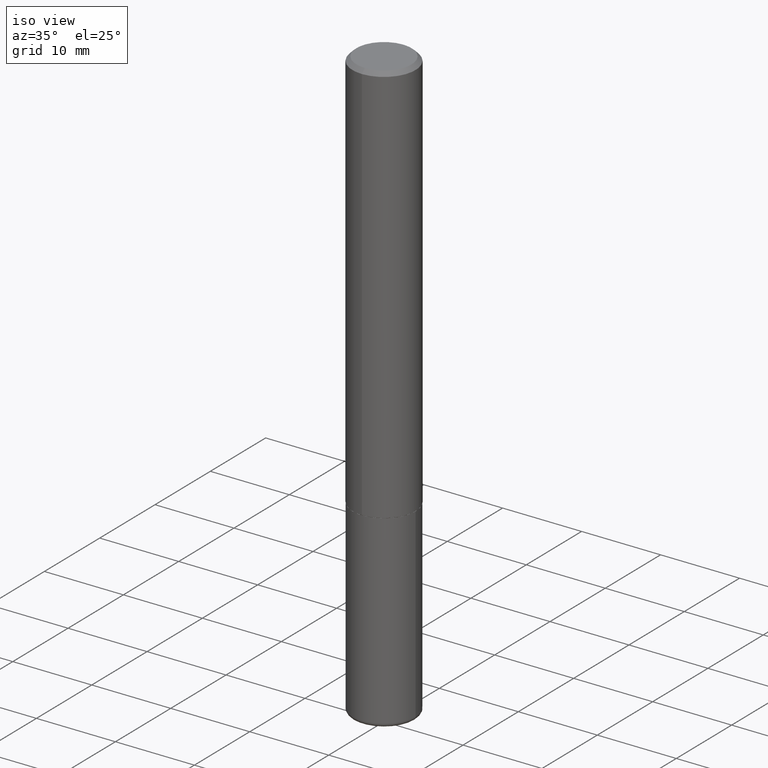
[diagram: clean part render]
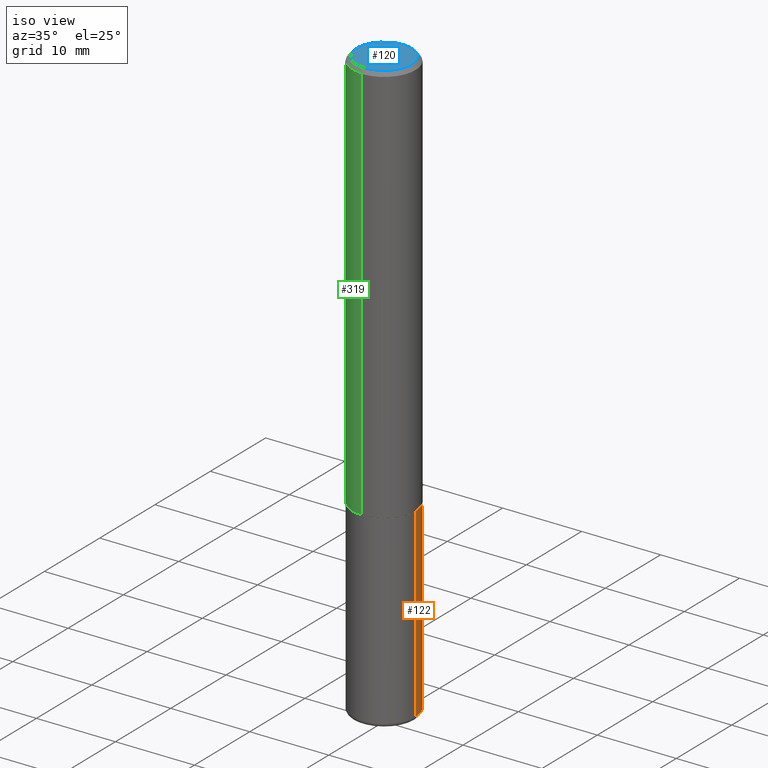
[diagram: same view with three faces highlighted in distinct colors, each labeled with its STEP entity id]
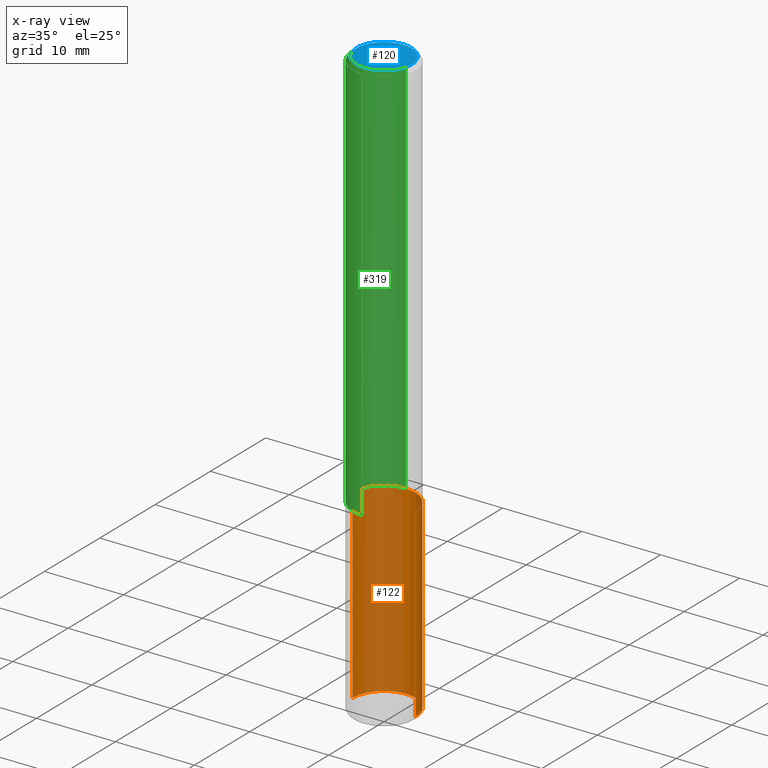
[diagram: x-ray of the same camera — body ghosted, the three highlighted faces saturated]
A machine part, iso view with three faces highlighted in distinct colors.
The next image is the same camera in x-ray (body ghosted, the three faces saturated) — at least one of them is partly hidden behind the body in this view.
Their STEP definitions:

[orange] entity #122 — the highlighted cylindrical surface (partial cylindrical patch) has radius 4.0005 mm, axis along (-0, 0, 1).
#6 = EDGE_CURVE ( 'NONE', #332, #349, #303, .T. ) ;
#11 = CARTESIAN_POINT ( 'NONE',  ( 0.1575000000000000011, -8.110362001998737613E-15, -2.007899999999999796 ) ) ;
#13 = CIRCLE ( 'NONE', #218, 0.1575000000000000011 ) ;
#14 = CARTESIAN_POINT ( 'NONE',  ( -0.1575000000000000011, -7.506599838789833107E-15, -2.007899999999999796 ) ) ;
#16 = DIRECTION ( 'NONE',  ( -2.445468806185136597E-29, 3.491481338843145583E-15, 1.000000000000000000 ) ) ;
#30 = CARTESIAN_POINT ( 'NONE',  ( 4.910256815939135309E-29, -7.010545380263150922E-15, -2.007899999999999796 ) ) ;
#38 = CYLINDRICAL_SURFACE ( 'NONE', #406, 0.1575000000000000011 ) ;
#62 = VERTEX_POINT ( 'NONE', #212 ) ;
#70 = DIRECTION ( 'NONE',  ( -2.445468806185136597E-29, 3.491481338843145583E-15, 1.000000000000000000 ) ) ;
#83 = CARTESIAN_POINT ( 'NONE',  ( 0.1575000000000000011, -1.099816621735586889E-15, 7.679978421878598033E-30 ) ) ;
#95 = DIRECTION ( 'NONE',  ( 1.000000000000000000, -6.982962677686265922E-15, 4.876176775795935232E-29 ) ) ;
#107 = EDGE_CURVE ( 'NONE', #349, #213, #416, .T. ) ;
#122 = ADVANCED_FACE ( 'NONE', ( #180 ), #38, .T. ) ;
#131 = VECTOR ( 'NONE', #331, 39.37007874015748143 ) ;
#147 = CARTESIAN_POINT ( 'NONE',  ( -0.1575000000000000011, 1.119104808822157801E-15, -7.747322767151475583E-30 ) ) ;
#157 = ORIENTED_EDGE ( 'NONE', *, *, #107, .F. ) ;
#165 = EDGE_CURVE ( 'NONE', #332, #62, #13, .T. ) ;
#175 = AXIS2_PLACEMENT_3D ( 'NONE', #30, #70, #177 ) ;
#177 = DIRECTION ( 'NONE',  ( 1.000000000000000000, -6.982962677686268288E-15, 0.000000000000000000 ) ) ;
#180 = FACE_OUTER_BOUND ( 'NONE', #351, .T. ) ;
#184 = CARTESIAN_POINT ( 'NONE',  ( 0.1574999999999998346, -1.134068053669641403E-14, -2.933100000000000041 ) ) ;
#212 = CARTESIAN_POINT ( 'NONE',  ( -0.1574999999999998346, -9.121759106138672895E-15, -2.933100000000000041 ) ) ;
#213 = VERTEX_POINT ( 'NONE', #14 ) ;
#218 = AXIS2_PLACEMENT_3D ( 'NONE', #229, #16, #232 ) ;
#229 = CARTESIAN_POINT ( 'NONE',  ( 7.172804555421624566E-29, -1.024086391496083050E-14, -2.933100000000000041 ) ) ;
#232 = DIRECTION ( 'NONE',  ( 1.000000000000000000, -6.982962677686261977E-15, 0.000000000000000000 ) ) ;
#248 = EDGE_CURVE ( 'NONE', #62, #213, #322, .T. ) ;
#268 = ORIENTED_EDGE ( 'NONE', *, *, #6, .F. ) ;
#287 = DIRECTION ( 'NONE',  ( -2.445468806185136597E-29, 3.491481338843145583E-15, 1.000000000000000000 ) ) ;
#303 = LINE ( 'NONE', #83, #334 ) ;
#322 = LINE ( 'NONE', #147, #131 ) ;
#324 = CARTESIAN_POINT ( 'NONE',  ( 0.000000000000000000, 0.000000000000000000, 0.000000000000000000 ) ) ;
#331 = DIRECTION ( 'NONE',  ( -2.445468806185136877E-29, 3.491481338843145188E-15, 1.000000000000000000 ) ) ;
#332 = VERTEX_POINT ( 'NONE', #184 ) ;
#334 = VECTOR ( 'NONE', #415, 39.37007874015748143 ) ;
#349 = VERTEX_POINT ( 'NONE', #11 ) ;
#351 = EDGE_LOOP ( 'NONE', ( #361, #401, #157, #268 ) ) ;
#361 = ORIENTED_EDGE ( 'NONE', *, *, #165, .T. ) ;
#401 = ORIENTED_EDGE ( 'NONE', *, *, #248, .T. ) ;
#406 = AXIS2_PLACEMENT_3D ( 'NONE', #324, #287, #95 ) ;
#415 = DIRECTION ( 'NONE',  ( -2.445468806185136877E-29, 3.491481338843145188E-15, 1.000000000000000000 ) ) ;
#416 = CIRCLE ( 'NONE', #175, 0.1575000000000000011 ) ;

[blue] entity #120 — the highlighted planar face has unit normal (0, -0, -1).
#1 = VERTEX_POINT ( 'NONE', #174 ) ;
#5 = FACE_OUTER_BOUND ( 'NONE', #364, .T. ) ;
#32 = EDGE_CURVE ( 'NONE', #1, #369, #137, .T. ) ;
#37 = DIRECTION ( 'NONE',  ( -6.982962677686265922E-15, -1.000000000000000000, 3.492539597212410327E-15 ) ) ;
#40 = EDGE_CURVE ( 'NONE', #369, #1, #260, .T. ) ;
#42 = ORIENTED_EDGE ( 'NONE', *, *, #40, .T. ) ;
#120 = ADVANCED_FACE ( 'NONE', ( #5 ), #249, .F. ) ;
#135 = CARTESIAN_POINT ( 'NONE',  ( 9.601573681818597005E-16, 0.1374999999999997335, -3.414247834255550788E-16 ) ) ;
#137 = CIRCLE ( 'NONE', #255, 0.1374999999999997335 ) ;
#174 = CARTESIAN_POINT ( 'NONE',  ( -1.011923454671299856E-15, -0.1374999999999997335, 7.578230169990059811E-16 ) ) ;
#179 = ORIENTED_EDGE ( 'NONE', *, *, #32, .T. ) ;
#207 = CARTESIAN_POINT ( 'NONE',  ( -6.786541213832790321E-45, 9.695248793097192351E-31, 2.775988223823005522E-16 ) ) ;
#237 = CARTESIAN_POINT ( 'NONE',  ( -6.786541213832790321E-45, 9.695248793097192351E-31, 2.775988223823005522E-16 ) ) ;
#249 = PLANE ( 'NONE',  #363 ) ;
#255 = AXIS2_PLACEMENT_3D ( 'NONE', #207, #379, #310 ) ;
#260 = CIRCLE ( 'NONE', #311, 0.1374999999999997335 ) ;
#310 = DIRECTION ( 'NONE',  ( -6.982962677686265922E-15, -1.000000000000000000, 3.492539597212410327E-15 ) ) ;
#311 = AXIS2_PLACEMENT_3D ( 'NONE', #237, #314, #37 ) ;
#314 = DIRECTION ( 'NONE',  ( -2.444729828315544280E-29, 3.492539597212409932E-15, 1.000000000000000000 ) ) ;
#315 = DIRECTION ( 'NONE',  ( 2.444729828315543719E-29, -3.492539597212410327E-15, -1.000000000000000000 ) ) ;
#321 = DIRECTION ( 'NONE',  ( 6.982962677686265922E-15, 1.000000000000000000, -3.492539597212410327E-15 ) ) ;
#330 = CARTESIAN_POINT ( 'NONE',  ( 1.029986994958723590E-15, 0.1374999999999997335, -2.026253722344048274E-16 ) ) ;
#363 = AXIS2_PLACEMENT_3D ( 'NONE', #135, #315, #321 ) ;
#364 = EDGE_LOOP ( 'NONE', ( #42, #179 ) ) ;
#369 = VERTEX_POINT ( 'NONE', #330 ) ;
#379 = DIRECTION ( 'NONE',  ( -2.444729828315544280E-29, 3.492539597212409932E-15, 1.000000000000000000 ) ) ;

[green] entity #319 — the highlighted cylindrical surface (partial cylindrical patch) has radius 4.0005 mm, axis along (-0, 0, 1).
#3 = ORIENTED_EDGE ( 'NONE', *, *, #148, .T. ) ;
#17 = CYLINDRICAL_SURFACE ( 'NONE', #45, 0.1575000000000001399 ) ;
#45 = AXIS2_PLACEMENT_3D ( 'NONE', #365, #197, #161 ) ;
#59 = CARTESIAN_POINT ( 'NONE',  ( -1.099816621735587677E-15, -0.1575000000000001399, 5.500749865609550376E-16 ) ) ;
#78 = DIRECTION ( 'NONE',  ( -2.444729828315544280E-29, 3.492539597212409932E-15, 1.000000000000000000 ) ) ;
#121 = AXIS2_PLACEMENT_3D ( 'NONE', #399, #78, #328 ) ;
#130 = VERTEX_POINT ( 'NONE', #404 ) ;
#148 = EDGE_CURVE ( 'NONE', #130, #153, #394, .T. ) ;
#151 = CARTESIAN_POINT ( 'NONE',  ( -1.080528434649015779E-15, -0.1575000000000000844, -0.01999999999999948347 ) ) ;
#153 = VERTEX_POINT ( 'NONE', #194 ) ;
#161 = DIRECTION ( 'NONE',  ( -6.982962677686265133E-15, -1.000000000000000000, 3.492539597212409932E-15 ) ) ;
#162 = ORIENTED_EDGE ( 'NONE', *, *, #304, .T. ) ;
#164 = EDGE_LOOP ( 'NONE', ( #350, #3, #162, #247 ) ) ;
#178 = EDGE_CURVE ( 'NONE', #130, #411, #201, .T. ) ;
#194 = CARTESIAN_POINT ( 'NONE',  ( -1.099816621735539360E-15, -0.1575000000000072453, -2.006899999999999018 ) ) ;
#197 = DIRECTION ( 'NONE',  ( -2.444729828315544280E-29, 3.492539597212409932E-15, 1.000000000000000000 ) ) ;
#201 = LINE ( 'NONE', #414, #291 ) ;
#211 = DIRECTION ( 'NONE',  ( -2.444729828315544280E-29, 3.492539597212409932E-15, 1.000000000000000000 ) ) ;
#216 = VECTOR ( 'NONE', #370, 39.37007874015748143 ) ;
#234 = LINE ( 'NONE', #59, #216 ) ;
#242 = VERTEX_POINT ( 'NONE', #151 ) ;
#247 = ORIENTED_EDGE ( 'NONE', *, *, #326, .F. ) ;
#267 = CIRCLE ( 'NONE', #336, 0.1575000000000000289 ) ;
#269 = CARTESIAN_POINT ( 'NONE',  ( 1.099816621735587480E-15, 0.1574999999999999456, -0.02000000000000058328 ) ) ;
#274 = DIRECTION ( 'NONE',  ( -2.444729828315544280E-29, 3.492539597212410327E-15, 1.000000000000000000 ) ) ;
#290 = FACE_OUTER_BOUND ( 'NONE', #164, .T. ) ;
#291 = VECTOR ( 'NONE', #274, 39.37007874015748143 ) ;
#297 = CARTESIAN_POINT ( 'NONE',  ( 4.889459656631096617E-31, -6.985079194424830218E-17, -0.02000000000000003511 ) ) ;
#304 = EDGE_CURVE ( 'NONE', #153, #242, #234, .T. ) ;
#319 = ADVANCED_FACE ( 'NONE', ( #290 ), #17, .T. ) ;
#326 = EDGE_CURVE ( 'NONE', #411, #242, #267, .T. ) ;
#328 = DIRECTION ( 'NONE',  ( -6.982962677686265922E-15, -1.000000000000000000, 3.469013325287948560E-15 ) ) ;
#336 = AXIS2_PLACEMENT_3D ( 'NONE', #297, #211, #387 ) ;
#350 = ORIENTED_EDGE ( 'NONE', *, *, #178, .F. ) ;
#365 = CARTESIAN_POINT ( 'NONE',  ( 0.000000000000000000, 0.000000000000000000, 0.000000000000000000 ) ) ;
#370 = DIRECTION ( 'NONE',  ( -2.444729828315544280E-29, 3.492539597212410327E-15, 1.000000000000000000 ) ) ;
#387 = DIRECTION ( 'NONE',  ( -6.982962677686264344E-15, -1.000000000000000000, 3.496114991891764787E-15 ) ) ;
#394 = CIRCLE ( 'NONE', #121, 0.1575000000000002232 ) ;
#399 = CARTESIAN_POINT ( 'NONE',  ( 4.906328292446464760E-29, -7.009177717645583542E-15, -2.006899999999999462 ) ) ;
#404 = CARTESIAN_POINT ( 'NONE',  ( 1.119104808822183439E-15, 0.1574999999999932287, -2.006899999999999906 ) ) ;
#411 = VERTEX_POINT ( 'NONE', #269 ) ;
#414 = CARTESIAN_POINT ( 'NONE',  ( 1.119104808822158392E-15, 0.1575000000000001399, -5.500749865609550376E-16 ) ) ;